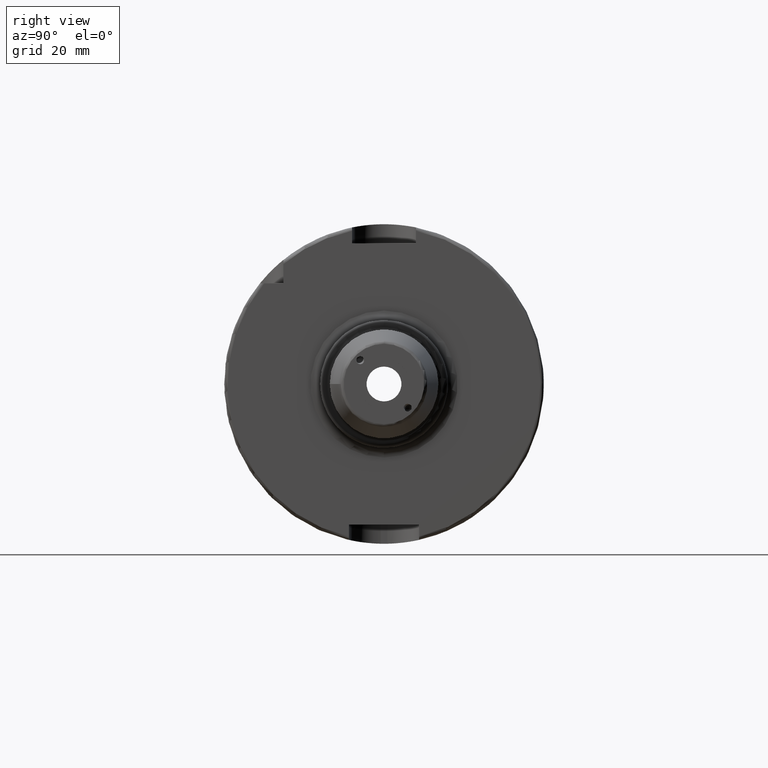
[diagram: clean part render]
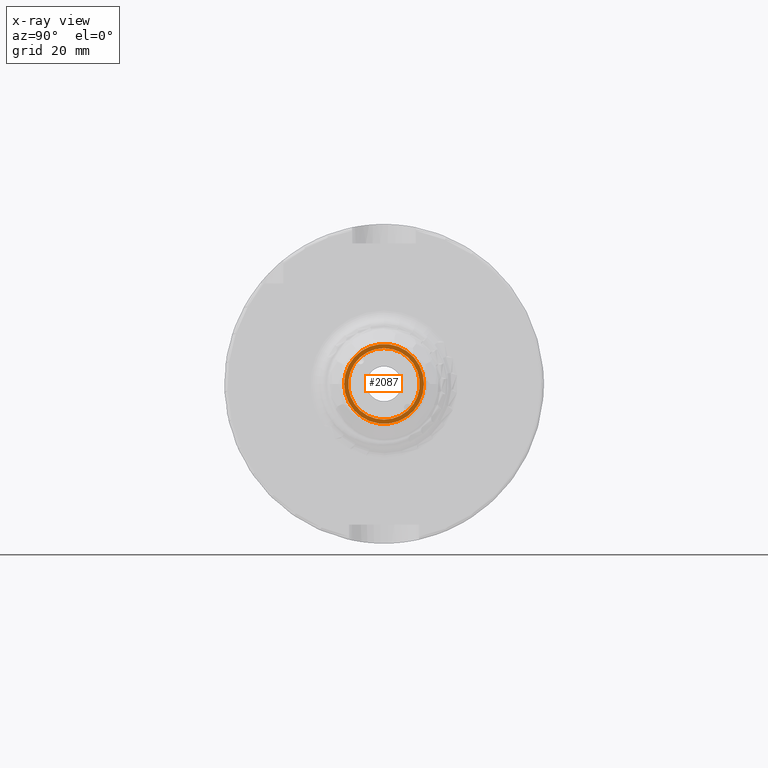
[diagram: x-ray — body ghosted, one internal face saturated and labeled with its STEP entity id]
A machine part, right view, then the same camera in x-ray: the body is ghosted and one INTERNAL B-rep face — a face not visible from any outside direction — is saturated and labeled: STEP entity #2087.
In plain terms, the highlighted planar face has unit normal (-1, 0, 0).
Its self-contained STEP definition (entity closure, byte-faithful):
#95=FACE_BOUND('',#442,.T.);
#131=PLANE('',#2351);
#311=FACE_OUTER_BOUND('',#441,.T.);
#441=EDGE_LOOP('',(#1888));
#442=EDGE_LOOP('',(#1889));
#782=CIRCLE('',#2342,11.188101);
#787=CIRCLE('',#2350,12.5);
#999=VERTEX_POINT('',#4473);
#1003=VERTEX_POINT('',#4486);
#1300=EDGE_CURVE('',#999,#999,#782,.T.);
#1306=EDGE_CURVE('',#1003,#1003,#787,.T.);
#1888=ORIENTED_EDGE('',*,*,#1306,.F.);
#1889=ORIENTED_EDGE('',*,*,#1300,.T.);
#2087=ADVANCED_FACE('',(#311,#95),#131,.F.);
#2342=AXIS2_PLACEMENT_3D('',#4475,#2918,#2919);
#2350=AXIS2_PLACEMENT_3D('',#4488,#2935,#2936);
#2351=AXIS2_PLACEMENT_3D('',#4489,#2937,#2938);
#2918=DIRECTION('center_axis',(-1.,0.,0.));
#2919=DIRECTION('ref_axis',(0.,0.,1.));
#2935=DIRECTION('center_axis',(-1.,0.,0.));
#2936=DIRECTION('ref_axis',(0.,0.,1.));
#2937=DIRECTION('center_axis',(-1.,0.,0.));
#2938=DIRECTION('ref_axis',(0.,0.,1.));
#4473=CARTESIAN_POINT('',(22.5,-1.37014720781873E-15,-11.188101));
#4475=CARTESIAN_POINT('Origin',(22.5,0.,0.));
#4486=CARTESIAN_POINT('',(22.5,-12.5,1.53080849893419E-15));
#4488=CARTESIAN_POINT('Origin',(22.5,0.,0.));
#4489=CARTESIAN_POINT('Origin',(22.5,10.,0.));